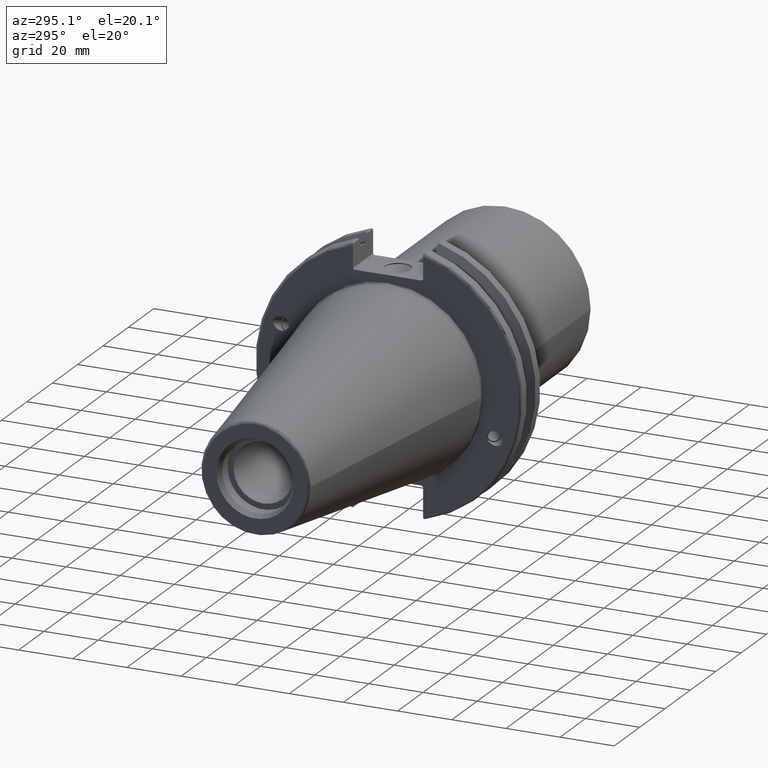
[diagram: clean part render]
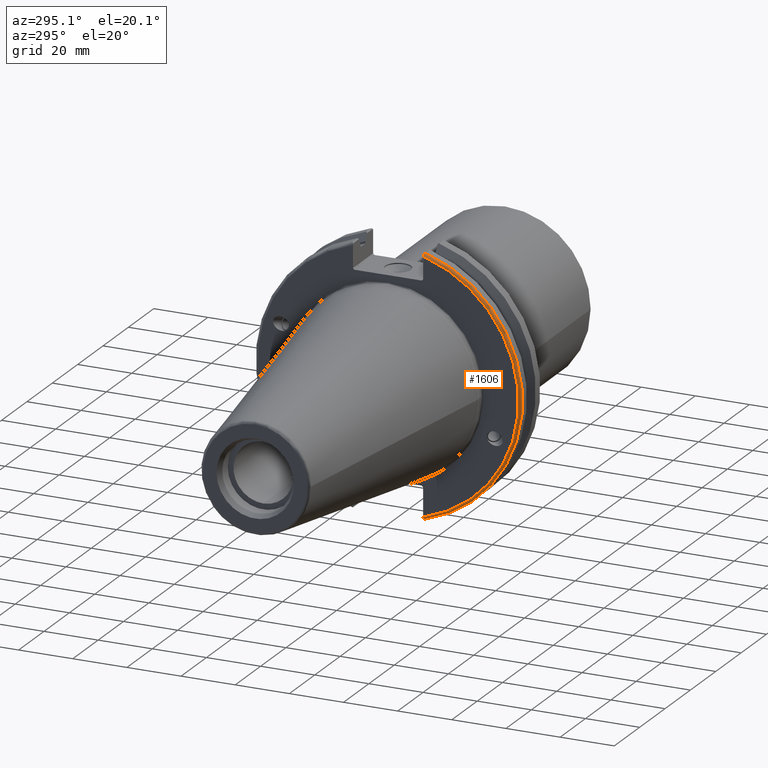
[diagram: same view with one face highlighted and labeled with its STEP entity id]
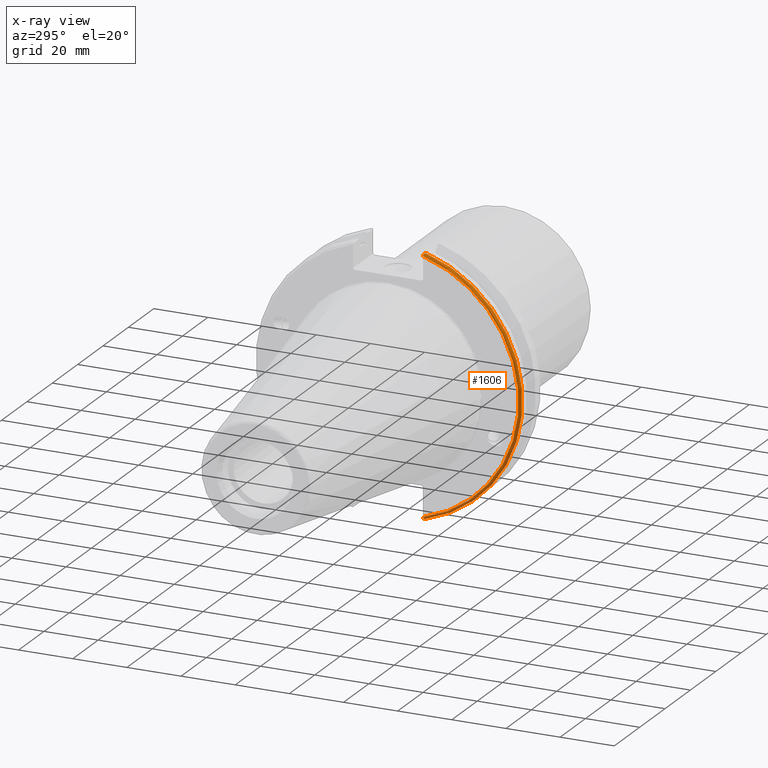
[diagram: x-ray of the same camera — body ghosted, the highlighted face saturated]
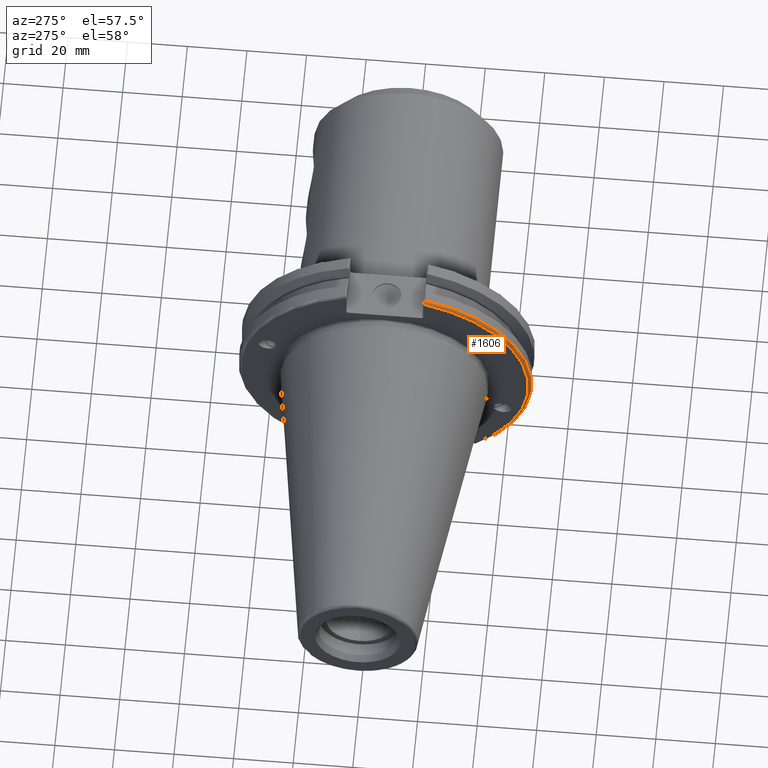
[diagram: same view with one face highlighted and labeled with its STEP entity id]
A machine part, auxiliary view. The second image highlights one B-rep face of the part: STEP entity #1606.
The next image is the same camera in x-ray: the body ghosted, the highlighted face saturated — about 0% of this face is hidden behind the body in this view.
A second angle (auxiliary view) of the same face is appended — the face is thin or edge-on in the first view.
In plain terms, the highlighted toroidal blend (fillet) surface has major radius 48.2125 mm and minor (blend) radius 1 mm.
Its self-contained STEP definition (entity closure, byte-faithful):
#40=TOROIDAL_SURFACE('',#1783,48.2125,1.);
#176=FACE_OUTER_BOUND('',#290,.T.);
#290=EDGE_LOOP('',(#1358,#1359,#1360,#1361,#1362,#1363));
#369=B_SPLINE_CURVE_WITH_KNOTS('',3,(#3202,#3203,#3204,#3205,#3206,#3207),
 .UNSPECIFIED.,.F.,.F.,(4,2,4),(0.0976892167532858,0.112000071948292,0.150881870548587),
 .UNSPECIFIED.);
#370=B_SPLINE_CURVE_WITH_KNOTS('',3,(#3228,#3229,#3230,#3231,#3232,#3233),
 .UNSPECIFIED.,.F.,.F.,(4,2,4),(0.452859340315922,0.491741138916218,0.506051994111223),
 .UNSPECIFIED.);
#371=B_SPLINE_CURVE_WITH_KNOTS('',3,(#3237,#3238,#3239,#3240,#3241,#3242,
#3243,#3244),.UNSPECIFIED.,.F.,.F.,(4,2,2,4),(-0.104075769062722,-0.0730268503455485,
-0.034363987365627,0.),.UNSPECIFIED.);
#372=B_SPLINE_CURVE_WITH_KNOTS('',3,(#3247,#3248,#3249,#3250,#3251,#3252,
#3253,#3254),.UNSPECIFIED.,.F.,.F.,(4,2,2,4),(0.,0.0343639873656262,0.073026850345548,
0.104075769062723),.UNSPECIFIED.);
#620=CIRCLE('',#1771,48.2125);
#625=CIRCLE('',#1784,49.2125);
#754=VERTEX_POINT('',#3080);
#755=VERTEX_POINT('',#3081);
#780=VERTEX_POINT('',#3201);
#786=VERTEX_POINT('',#3226);
#787=VERTEX_POINT('',#3236);
#788=VERTEX_POINT('',#3245);
#950=EDGE_CURVE('',#754,#755,#620,.T.);
#984=EDGE_CURVE('',#780,#754,#369,.T.);
#994=EDGE_CURVE('',#755,#786,#370,.T.);
#996=EDGE_CURVE('',#786,#787,#371,.T.);
#997=EDGE_CURVE('',#787,#788,#625,.T.);
#998=EDGE_CURVE('',#788,#780,#372,.T.);
#1358=ORIENTED_EDGE('',*,*,#996,.T.);
#1359=ORIENTED_EDGE('',*,*,#997,.T.);
#1360=ORIENTED_EDGE('',*,*,#998,.T.);
#1361=ORIENTED_EDGE('',*,*,#984,.T.);
#1362=ORIENTED_EDGE('',*,*,#950,.T.);
#1363=ORIENTED_EDGE('',*,*,#994,.T.);
#1606=ADVANCED_FACE('',(#176),#40,.T.);
#1771=AXIS2_PLACEMENT_3D('',#3082,#2099,#2100);
#1783=AXIS2_PLACEMENT_3D('',#3235,#2150,#2151);
#1784=AXIS2_PLACEMENT_3D('',#3246,#2152,#2153);
#2099=DIRECTION('center_axis',(1.,0.,0.));
#2100=DIRECTION('ref_axis',(0.,-1.,1.60812264967664E-16));
#2150=DIRECTION('center_axis',(1.,0.,0.));
#2151=DIRECTION('ref_axis',(0.,0.,-1.));
#2152=DIRECTION('center_axis',(-1.,0.,0.));
#2153=DIRECTION('ref_axis',(0.,-1.,1.60812264967664E-16));
#3080=CARTESIAN_POINT('',(3.175,-12.95,46.4407434937254));
#3081=CARTESIAN_POINT('',(3.175,-12.95,-46.4407434937254));
#3082=CARTESIAN_POINT('Origin',(3.175,0.,0.));
#3201=CARTESIAN_POINT('',(3.31949794294344,-12.95,46.9780755322918));
#3202=CARTESIAN_POINT('Ctrl Pts',(3.31949794294344,-12.95,46.9780755322918));
#3203=CARTESIAN_POINT('Ctrl Pts',(3.29341556483839,-12.95,46.9333752207329));
#3204=CARTESIAN_POINT('Ctrl Pts',(3.27115672912336,-12.95,46.887363294568));
#3205=CARTESIAN_POINT('Ctrl Pts',(3.20453530071253,-12.95,46.7230464903732));
#3206=CARTESIAN_POINT('Ctrl Pts',(3.175,-12.95,46.5703494890597));
#3207=CARTESIAN_POINT('Ctrl Pts',(3.175,-12.95,46.4407434937254));
#3226=CARTESIAN_POINT('',(3.31949794294343,-12.95,-46.9780755322917));
#3228=CARTESIAN_POINT('Ctrl Pts',(3.175,-12.95,-46.4407434937254));
#3229=CARTESIAN_POINT('Ctrl Pts',(3.175,-12.95,-46.5703494890597));
#3230=CARTESIAN_POINT('Ctrl Pts',(3.20453530071253,-12.95,-46.7230464903732));
#3231=CARTESIAN_POINT('Ctrl Pts',(3.27115672912336,-12.95,-46.887363294568));
#3232=CARTESIAN_POINT('Ctrl Pts',(3.29341556483838,-12.95,-46.9333752207329));
#3233=CARTESIAN_POINT('Ctrl Pts',(3.31949794294343,-12.95,-46.9780755322917));
#3235=CARTESIAN_POINT('Origin',(4.175,0.,0.));
#3236=CARTESIAN_POINT('',(4.175,-13.4317035994433,-47.3440544806494));
#3237=CARTESIAN_POINT('Ctrl Pts',(3.31949794294343,-12.95,-46.9780755322917));
#3238=CARTESIAN_POINT('Ctrl Pts',(3.36785032278753,-13.0300321736484,-47.0388807469102));
#3239=CARTESIAN_POINT('Ctrl Pts',(3.43235971798504,-13.1083611826073,-47.0983919657547));
#3240=CARTESIAN_POINT('Ctrl Pts',(3.58507512107923,-13.2478194810696,-47.2043467509586));
#3241=CARTESIAN_POINT('Ctrl Pts',(3.70638116490964,-13.3242014686233,-47.2623787015413));
#3242=CARTESIAN_POINT('Ctrl Pts',(3.92661103245834,-13.4067722493645,-47.3251126473446));
#3243=CARTESIAN_POINT('Ctrl Pts',(4.06045337544791,-13.4317035994434,-47.3440544806494));
#3244=CARTESIAN_POINT('Ctrl Pts',(4.175,-13.4317035994434,-47.3440544806494));
#3245=CARTESIAN_POINT('',(4.175,-13.4317035994433,47.3440544806494));
#3246=CARTESIAN_POINT('Origin',(4.175,0.,0.));
#3247=CARTESIAN_POINT('Ctrl Pts',(4.175,-13.4317035994433,47.3440544806494));
#3248=CARTESIAN_POINT('Ctrl Pts',(4.06045337544791,-13.4317035994433,47.3440544806494));
#3249=CARTESIAN_POINT('Ctrl Pts',(3.92661103245835,-13.4067722493645,47.3251126473446));
#3250=CARTESIAN_POINT('Ctrl Pts',(3.70638116490965,-13.3242014686233,47.2623787015413));
#3251=CARTESIAN_POINT('Ctrl Pts',(3.58507512107923,-13.2478194810695,47.2043467509586));
#3252=CARTESIAN_POINT('Ctrl Pts',(3.43235971798504,-13.1083611826073,47.0983919657547));
#3253=CARTESIAN_POINT('Ctrl Pts',(3.36785032278754,-13.0300321736484,47.0388807469102));
#3254=CARTESIAN_POINT('Ctrl Pts',(3.31949794294344,-12.95,46.9780755322918));